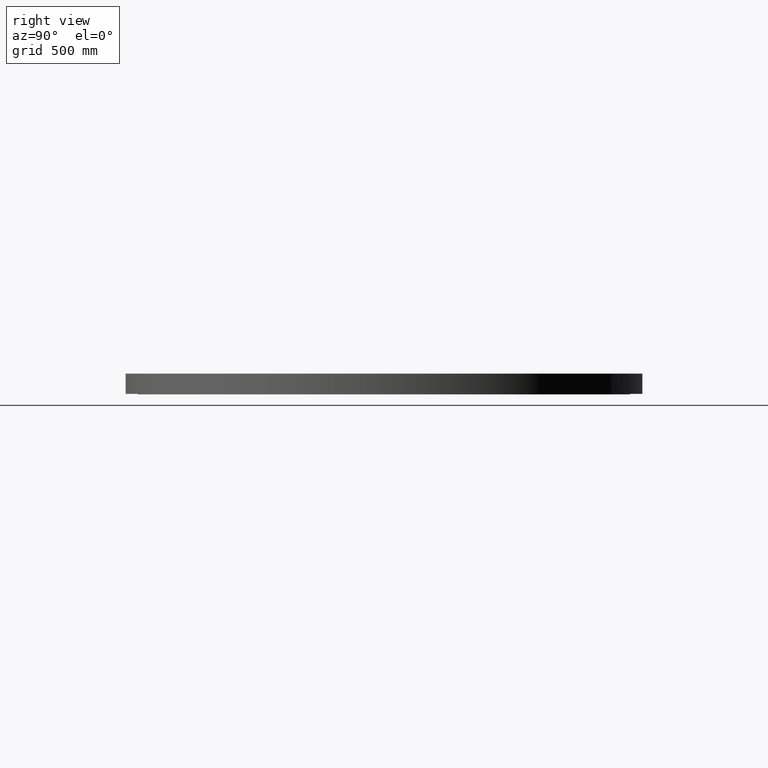
[diagram: clean part render]
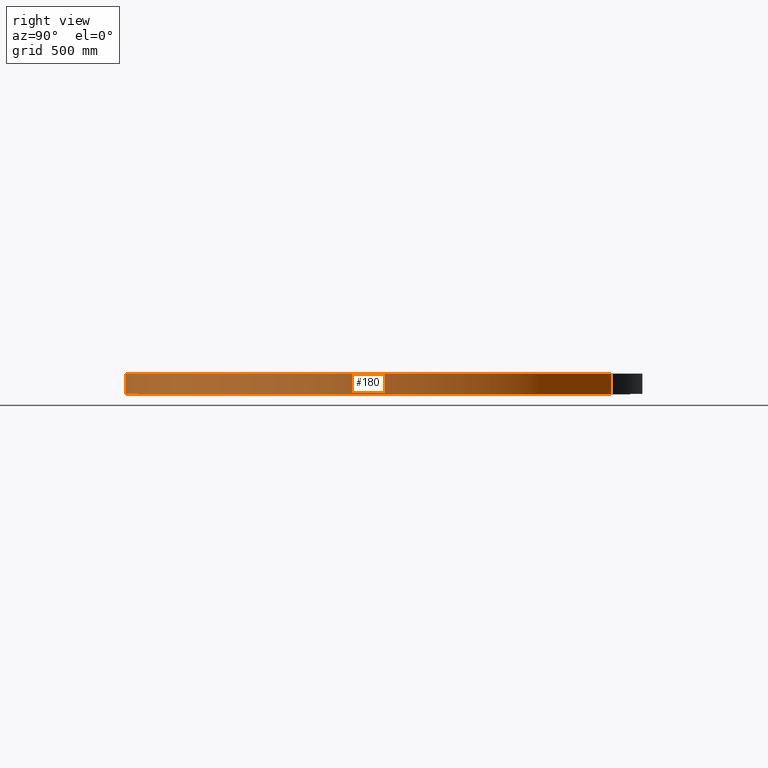
[diagram: same view with one face highlighted and labeled with its STEP entity id]
A machine part, right view. The second image highlights one B-rep face of the part: STEP entity #180.
In plain terms, the highlighted cylindrical surface (partial cylindrical patch) has radius 1016 mm, axis along (0, 0, -1).
Its self-contained STEP definition (entity closure, byte-faithful):
#127=AXIS2_PLACEMENT_3D('Cylinder Axis2P3D',#124,#125,#126) ;
#166=AXIS2_PLACEMENT_3D('Circle Axis2P3D',#164,#165,$) ;
#171=AXIS2_PLACEMENT_3D('Circle Axis2P3D',#169,#170,$) ;
#124=CARTESIAN_POINT('Axis2P3D Location',(0.,0.,1.53375000001)) ;
#133=CARTESIAN_POINT('Vertex',(-19.1770215442,-35.1033024758,5.31508345647E-015)) ;
#135=CARTESIAN_POINT('Vertex',(19.1770215442,35.1033024758,5.31508345647E-015)) ;
#138=CARTESIAN_POINT('Line Origine',(-19.1770215442,-35.1033024758,1.56500000001)) ;
#142=CARTESIAN_POINT('Vertex',(-19.1770215442,-35.1033024758,3.13000000001)) ;
#149=CARTESIAN_POINT('Vertex',(19.1770215442,35.1033024758,3.13000000001)) ;
#152=CARTESIAN_POINT('Line Origine',(19.1770215442,35.1033024758,1.56500000001)) ;
#164=CARTESIAN_POINT('Axis2P3D Location',(0.,0.,5.03534222192E-015)) ;
#169=CARTESIAN_POINT('Axis2P3D Location',(0.,0.,3.13000000001)) ;
#125=DIRECTION('Axis2P3D Direction',(0.,0.,-0.0393700787402)) ;
#126=DIRECTION('Axis2P3D XDirection',(0.0188750212049,0.0345504945626,0.)) ;
#139=DIRECTION('Vector Direction',(0.,0.,-0.0393700787402)) ;
#153=DIRECTION('Vector Direction',(0.,0.,-0.0393700787402)) ;
#165=DIRECTION('Axis2P3D Direction',(0.,0.,-0.0393700787402)) ;
#170=DIRECTION('Axis2P3D Direction',(0.,0.,-0.0393700787402)) ;
#140=VECTOR('Line Direction',#139,0.0393700787402) ;
#154=VECTOR('Line Direction',#153,0.0393700787402) ;
#175=ORIENTED_EDGE('',*,*,#168,.F.) ;
#176=ORIENTED_EDGE('',*,*,#156,.T.) ;
#177=ORIENTED_EDGE('',*,*,#173,.T.) ;
#178=ORIENTED_EDGE('',*,*,#144,.F.) ;
#180=ADVANCED_FACE('PartBody',(#179),#128,.T.) ;
#167=CIRCLE('generated circle',#166,40.0000000002) ;
#172=CIRCLE('generated circle',#171,40.0000000002) ;
#128=CYLINDRICAL_SURFACE('generated cylinder',#127,40.0000000002) ;
#144=EDGE_CURVE('',#134,#143,#141,.F.) ;
#156=EDGE_CURVE('',#136,#150,#155,.F.) ;
#168=EDGE_CURVE('',#136,#134,#167,.T.) ;
#173=EDGE_CURVE('',#150,#143,#172,.T.) ;
#174=EDGE_LOOP('',(#175,#176,#177,#178)) ;
#179=FACE_OUTER_BOUND('',#174,.T.) ;
#141=LINE('Line',#138,#140) ;
#155=LINE('Line',#152,#154) ;
#134=VERTEX_POINT('',#133) ;
#136=VERTEX_POINT('',#135) ;
#143=VERTEX_POINT('',#142) ;
#150=VERTEX_POINT('',#149) ;